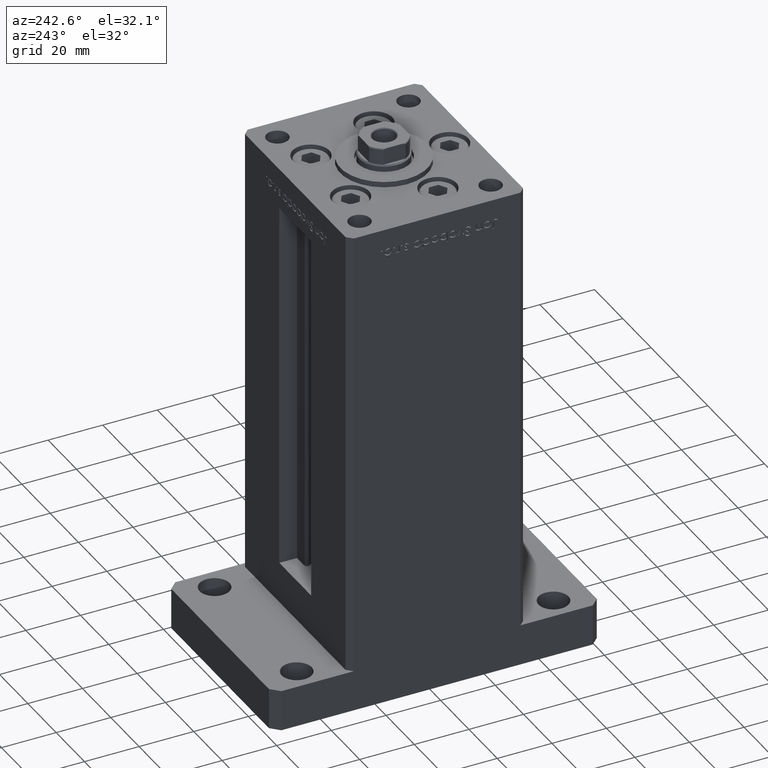
[diagram: clean part render]
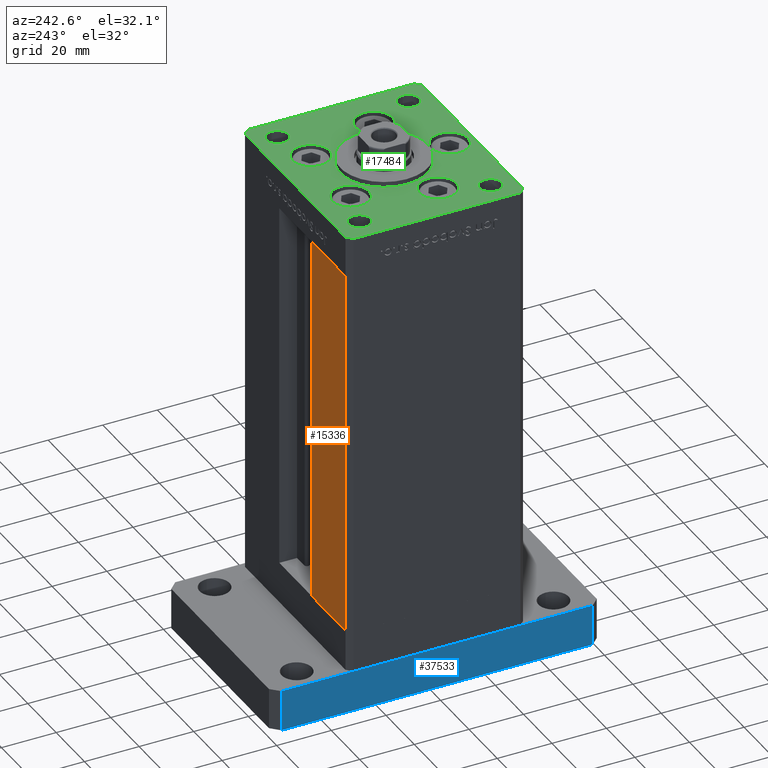
[diagram: same view with three faces highlighted in distinct colors, each labeled with its STEP entity id]
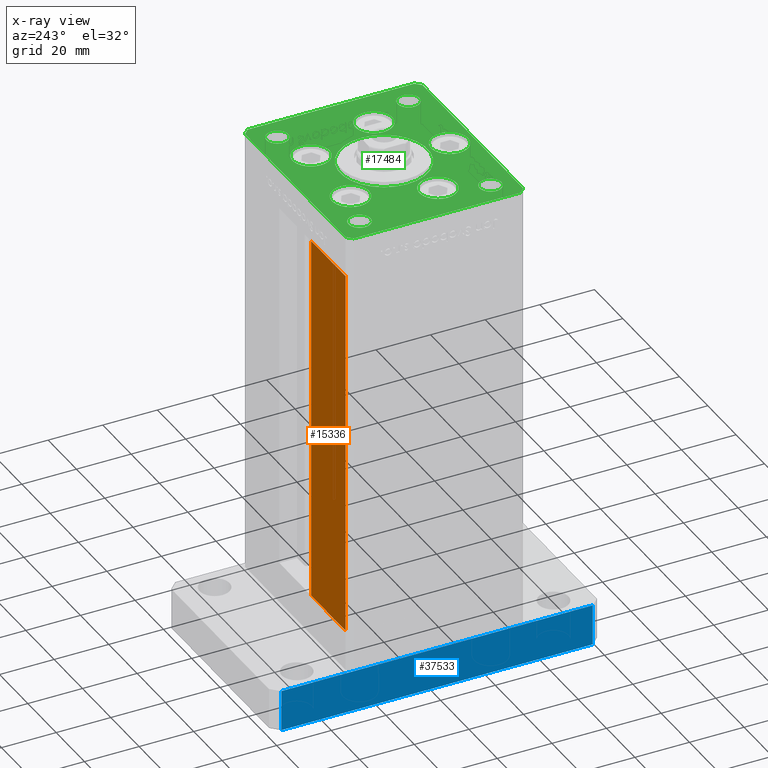
[diagram: x-ray of the same camera — body ghosted, the three highlighted faces saturated]
A machine part, auxiliary view with three faces highlighted in distinct colors.
The next image is the same camera in x-ray (body ghosted, the three faces saturated) — at least one of them is partly hidden behind the body in this view.
Their STEP definitions:

[orange] entity #15336 — the highlighted planar face has unit normal (0, -1, 0).
#1339 = VERTEX_POINT ( 'NONE', #50384 ) ;
#2008 = LINE ( 'NONE', #51422, #10471 ) ;
#3023 = EDGE_LOOP ( 'NONE', ( #21332, #34468, #3472, #3161 ) ) ;
#3161 = ORIENTED_EDGE ( 'NONE', *, *, #12443, .F. ) ;
#3472 = ORIENTED_EDGE ( 'NONE', *, *, #41448, .T. ) ;
#9154 = VECTOR ( 'NONE', #34036, 1000.000000000000000 ) ;
#10471 = VECTOR ( 'NONE', #39759, 1000.000000000000000 ) ;
#12287 = VERTEX_POINT ( 'NONE', #39274 ) ;
#12443 = EDGE_CURVE ( 'NONE', #27470, #33014, #2008, .T. ) ;
#15336 = ADVANCED_FACE ( 'NONE', ( #30939 ), #23301, .F. ) ;
#21332 = ORIENTED_EDGE ( 'NONE', *, *, #50135, .T. ) ;
#23165 = CARTESIAN_POINT ( 'NONE',  ( -11.25000000000000178, 32.49999999999999289, 0.000000000000000000 ) ) ;
#23301 = PLANE ( 'NONE',  #24415 ) ;
#24415 = AXIS2_PLACEMENT_3D ( 'NONE', #52358, #26851, #39098 ) ;
#25604 = CARTESIAN_POINT ( 'NONE',  ( -11.25000000000000178, 32.49999999999999289, 136.0000000000000000 ) ) ;
#26851 = DIRECTION ( 'NONE',  ( 0.000000000000000000, -1.000000000000000000, 0.000000000000000000 ) ) ;
#27470 = VERTEX_POINT ( 'NONE', #41956 ) ;
#28240 = CARTESIAN_POINT ( 'NONE',  ( -35.50000000000000000, 32.49999999999999289, 0.000000000000000000 ) ) ;
#30939 = FACE_OUTER_BOUND ( 'NONE', #3023, .T. ) ;
#33014 = VERTEX_POINT ( 'NONE', #28240 ) ;
#33531 = LINE ( 'NONE', #42236, #47785 ) ;
#33756 = LINE ( 'NONE', #25604, #9154 ) ;
#34036 = DIRECTION ( 'NONE',  ( 1.000000000000000000, 0.000000000000000000, 0.000000000000000000 ) ) ;
#34468 = ORIENTED_EDGE ( 'NONE', *, *, #35773, .F. ) ;
#35773 = EDGE_CURVE ( 'NONE', #12287, #1339, #33531, .T. ) ;
#39098 = DIRECTION ( 'NONE',  ( 0.000000000000000000, -0.000000000000000000, -1.000000000000000000 ) ) ;
#39274 = CARTESIAN_POINT ( 'NONE',  ( -11.25000000000000178, 32.49999999999999289, 0.000000000000000000 ) ) ;
#39751 = DIRECTION ( 'NONE',  ( -1.000000000000000000, 0.000000000000000000, 0.000000000000000000 ) ) ;
#39759 = DIRECTION ( 'NONE',  ( -0.000000000000000000, -0.000000000000000000, -1.000000000000000000 ) ) ;
#41448 = EDGE_CURVE ( 'NONE', #12287, #33014, #48138, .T. ) ;
#41956 = CARTESIAN_POINT ( 'NONE',  ( -35.50000000000000000, 32.49999999999999289, 136.0000000000000000 ) ) ;
#42236 = CARTESIAN_POINT ( 'NONE',  ( -11.25000000000000178, 32.49999999999999289, 0.000000000000000000 ) ) ;
#46281 = VECTOR ( 'NONE', #39751, 1000.000000000000000 ) ;
#47785 = VECTOR ( 'NONE', #50068, 1000.000000000000000 ) ;
#48138 = LINE ( 'NONE', #23165, #46281 ) ;
#50068 = DIRECTION ( 'NONE',  ( -0.000000000000000000, -0.000000000000000000, 1.000000000000000000 ) ) ;
#50135 = EDGE_CURVE ( 'NONE', #27470, #1339, #33756, .T. ) ;
#50384 = CARTESIAN_POINT ( 'NONE',  ( -11.25000000000000178, 32.49999999999999289, 136.0000000000000000 ) ) ;
#51422 = CARTESIAN_POINT ( 'NONE',  ( -35.50000000000000000, 32.49999999999999289, 136.0000000000000000 ) ) ;
#52358 = CARTESIAN_POINT ( 'NONE',  ( -11.25000000000000178, 32.49999999999999289, 136.0000000000000000 ) ) ;

[blue] entity #37533 — the highlighted planar face has unit normal (1, -0, 0).
#2161 = LINE ( 'NONE', #13847, #25506 ) ;
#2397 = CARTESIAN_POINT ( 'NONE',  ( -37.49999999999999289, -57.00000000000002132, 15.00000000000000000 ) ) ;
#3364 = DIRECTION ( 'NONE',  ( 7.304098846218132695E-16, 1.000000000000000000, 0.000000000000000000 ) ) ;
#5126 = CARTESIAN_POINT ( 'NONE',  ( -37.49999999999990763, 57.00000000000000711, 15.00000000000000000 ) ) ;
#7164 = CARTESIAN_POINT ( 'NONE',  ( -37.49999999999990763, 57.00000000000000711, 15.00000000000000000 ) ) ;
#12035 = DIRECTION ( 'NONE',  ( -7.304098846218132695E-16, -1.000000000000000000, 0.000000000000000000 ) ) ;
#12796 = ORIENTED_EDGE ( 'NONE', *, *, #20062, .T. ) ;
#13132 = VECTOR ( 'NONE', #50747, 1000.000000000000000 ) ;
#13847 = CARTESIAN_POINT ( 'NONE',  ( -37.49999999999990763, 57.00000000000000711, 0.000000000000000000 ) ) ;
#15029 = EDGE_CURVE ( 'NONE', #48775, #47309, #17903, .T. ) ;
#16918 = CARTESIAN_POINT ( 'NONE',  ( -37.49999999999990763, 57.00000000000000711, 15.00000000000000000 ) ) ;
#17903 = LINE ( 'NONE', #2397, #13132 ) ;
#20062 = EDGE_CURVE ( 'NONE', #27847, #30831, #32957, .T. ) ;
#20787 = ORIENTED_EDGE ( 'NONE', *, *, #42048, .F. ) ;
#21016 = CARTESIAN_POINT ( 'NONE',  ( -37.49999999999990763, 57.00000000000000711, 15.00000000000000000 ) ) ;
#22756 = AXIS2_PLACEMENT_3D ( 'NONE', #21016, #49506, #3364 ) ;
#25506 = VECTOR ( 'NONE', #51030, 1000.000000000000000 ) ;
#25870 = DIRECTION ( 'NONE',  ( -0.000000000000000000, -0.000000000000000000, -1.000000000000000000 ) ) ;
#27847 = VERTEX_POINT ( 'NONE', #5126 ) ;
#28787 = ORIENTED_EDGE ( 'NONE', *, *, #42643, .T. ) ;
#28906 = EDGE_LOOP ( 'NONE', ( #28787, #37389, #20787, #12796 ) ) ;
#30831 = VERTEX_POINT ( 'NONE', #45983 ) ;
#32957 = LINE ( 'NONE', #16918, #53258 ) ;
#37389 = ORIENTED_EDGE ( 'NONE', *, *, #15029, .F. ) ;
#37533 = ADVANCED_FACE ( 'NONE', ( #50781 ), #37597, .F. ) ;
#37597 = PLANE ( 'NONE',  #22756 ) ;
#40221 = VECTOR ( 'NONE', #12035, 1000.000000000000000 ) ;
#42048 = EDGE_CURVE ( 'NONE', #27847, #48775, #53566, .T. ) ;
#42643 = EDGE_CURVE ( 'NONE', #30831, #47309, #2161, .T. ) ;
#45983 = CARTESIAN_POINT ( 'NONE',  ( -37.49999999999990763, 57.00000000000000711, 0.000000000000000000 ) ) ;
#47147 = CARTESIAN_POINT ( 'NONE',  ( -37.49999999999999289, -57.00000000000002132, 15.00000000000000000 ) ) ;
#47309 = VERTEX_POINT ( 'NONE', #53523 ) ;
#48775 = VERTEX_POINT ( 'NONE', #47147 ) ;
#49506 = DIRECTION ( 'NONE',  ( 1.000000000000000000, -7.304098846218132695E-16, 0.000000000000000000 ) ) ;
#50747 = DIRECTION ( 'NONE',  ( -0.000000000000000000, -0.000000000000000000, -1.000000000000000000 ) ) ;
#50781 = FACE_OUTER_BOUND ( 'NONE', #28906, .T. ) ;
#51030 = DIRECTION ( 'NONE',  ( -7.304098846218132695E-16, -1.000000000000000000, 0.000000000000000000 ) ) ;
#53258 = VECTOR ( 'NONE', #25870, 1000.000000000000000 ) ;
#53523 = CARTESIAN_POINT ( 'NONE',  ( -37.49999999999999289, -57.00000000000002132, 0.000000000000000000 ) ) ;
#53566 = LINE ( 'NONE', #7164, #40221 ) ;

[green] entity #17484 — the highlighted planar face has unit normal (0, 0, 1).
#295 = ORIENTED_EDGE ( 'NONE', *, *, #32618, .T. ) ;
#374 = CIRCLE ( 'NONE', #14262, 16.00000000000000355 ) ;
#465 = ORIENTED_EDGE ( 'NONE', *, *, #22679, .T. ) ;
#651 = DIRECTION ( 'NONE',  ( -1.000000000000000000, -1.954618001100627573E-16, 0.000000000000000000 ) ) ;
#946 = FACE_BOUND ( 'NONE', #22179, .T. ) ;
#993 = CARTESIAN_POINT ( 'NONE',  ( -22.62741699796953299, -8.000000000000000000, 0.000000000000000000 ) ) ;
#1073 = AXIS2_PLACEMENT_3D ( 'NONE', #50082, #41714, #46567 ) ;
#1078 = CIRCLE ( 'NONE', #24501, 3.999999999999996447 ) ;
#1553 = CARTESIAN_POINT ( 'NONE',  ( 33.00000000000000000, 24.00000000000000355, 0.000000000000000000 ) ) ;
#1652 = CARTESIAN_POINT ( 'NONE',  ( -29.00000000000000000, 24.00000000000000711, 0.000000000000000000 ) ) ;
#2173 = ORIENTED_EDGE ( 'NONE', *, *, #36074, .T. ) ;
#2680 = ORIENTED_EDGE ( 'NONE', *, *, #21566, .F. ) ;
#2726 = ORIENTED_EDGE ( 'NONE', *, *, #30669, .T. ) ;
#2859 = CARTESIAN_POINT ( 'NONE',  ( 29.00000000000000355, -23.99999999999999645, 0.000000000000000000 ) ) ;
#3047 = AXIS2_PLACEMENT_3D ( 'NONE', #6230, #34778, #39916 ) ;
#3269 = VERTEX_POINT ( 'NONE', #3989 ) ;
#3448 = AXIS2_PLACEMENT_3D ( 'NONE', #28226, #52656, #15998 ) ;
#3607 = DIRECTION ( 'NONE',  ( -1.000000000000000000, 0.000000000000000000, 0.000000000000000000 ) ) ;
#3701 = CARTESIAN_POINT ( 'NONE',  ( -6.750000000001552536, -24.00000000000001066, 0.000000000000000000 ) ) ;
#3857 = CARTESIAN_POINT ( 'NONE',  ( 0.000000000000000000, -24.00000000000001066, 0.000000000000000000 ) ) ;
#3977 = EDGE_CURVE ( 'NONE', #5940, #23628, #31138, .T. ) ;
#3989 = CARTESIAN_POINT ( 'NONE',  ( 15.87741699796952410, -8.000000000000000000, 0.000000000000000000 ) ) ;
#4038 = EDGE_CURVE ( 'NONE', #10943, #51070, #9466, .T. ) ;
#4211 = EDGE_CURVE ( 'NONE', #21916, #23984, #10166, .T. ) ;
#4369 = VECTOR ( 'NONE', #9335, 1000.000000000000000 ) ;
#4488 = AXIS2_PLACEMENT_3D ( 'NONE', #52748, #15562, #3607 ) ;
#4526 = CIRCLE ( 'NONE', #14067, 6.749999999999997335 ) ;
#4577 = DIRECTION ( 'NONE',  ( 1.000000000000000000, 0.000000000000000000, 0.000000000000000000 ) ) ;
#4735 = CARTESIAN_POINT ( 'NONE',  ( 35.50000000000000000, 32.49999999999999289, 0.000000000000000000 ) ) ;
#5151 = VECTOR ( 'NONE', #10458, 1000.000000000000000 ) ;
#5483 = EDGE_CURVE ( 'NONE', #23303, #51928, #6003, .T. ) ;
#5548 = AXIS2_PLACEMENT_3D ( 'NONE', #3857, #48390, #44076 ) ;
#5940 = VERTEX_POINT ( 'NONE', #1553 ) ;
#6003 = CIRCLE ( 'NONE', #12942, 16.00000000000000355 ) ;
#6075 = CIRCLE ( 'NONE', #46816, 6.750000000000000000 ) ;
#6230 = CARTESIAN_POINT ( 'NONE',  ( 13.99106857963324124, 19.50000000000000000, 0.000000000000000000 ) ) ;
#6265 = DIRECTION ( 'NONE',  ( -0.000000000000000000, -0.000000000000000000, -1.000000000000000000 ) ) ;
#6925 = DIRECTION ( 'NONE',  ( -1.000000000000000000, 0.000000000000000000, 0.000000000000000000 ) ) ;
#7287 = CIRCLE ( 'NONE', #5548, 6.750000000001552536 ) ;
#7712 = AXIS2_PLACEMENT_3D ( 'NONE', #48471, #19985, #40632 ) ;
#7731 = EDGE_LOOP ( 'NONE', ( #25897, #44507 ) ) ;
#8165 = CIRCLE ( 'NONE', #53284, 6.750000000001552536 ) ;
#8559 = FACE_BOUND ( 'NONE', #30779, .T. ) ;
#8656 = CARTESIAN_POINT ( 'NONE',  ( 29.00000000000000000, 24.00000000000000355, 0.000000000000000000 ) ) ;
#9014 = DIRECTION ( 'NONE',  ( 1.000000000000000000, 0.000000000000000000, 0.000000000000000000 ) ) ;
#9157 = DIRECTION ( 'NONE',  ( 0.000000000000000000, 0.000000000000000000, 1.000000000000000000 ) ) ;
#9335 = DIRECTION ( 'NONE',  ( -0.7071067811865524577, 0.7071067811865426878, 0.000000000000000000 ) ) ;
#9348 = DIRECTION ( 'NONE',  ( 0.000000000000000000, 0.000000000000000000, 1.000000000000000000 ) ) ;
#9466 = CIRCLE ( 'NONE', #30270, 3.999999999999996447 ) ;
#9506 = CARTESIAN_POINT ( 'NONE',  ( 29.37741699796954364, -8.000000000000000000, 0.000000000000000000 ) ) ;
#9512 = EDGE_CURVE ( 'NONE', #51311, #33471, #41558, .T. ) ;
#9581 = EDGE_CURVE ( 'NONE', #29200, #3269, #43352, .T. ) ;
#9584 = EDGE_LOOP ( 'NONE', ( #2726, #33657, #39106, #43207, #295, #465, #40172, #52803 ) ) ;
#10101 = VERTEX_POINT ( 'NONE', #10969 ) ;
#10166 = LINE ( 'NONE', #42238, #18144 ) ;
#10406 = VERTEX_POINT ( 'NONE', #52451 ) ;
#10458 = DIRECTION ( 'NONE',  ( 0.7071067811865512365, -0.7071067811865439090, 0.000000000000000000 ) ) ;
#10462 = LINE ( 'NONE', #44398, #47172 ) ;
#10712 = EDGE_LOOP ( 'NONE', ( #46963, #23668 ) ) ;
#10782 = DIRECTION ( 'NONE',  ( 1.000000000000000000, 0.000000000000000000, 0.000000000000000000 ) ) ;
#10943 = VERTEX_POINT ( 'NONE', #40336 ) ;
#10969 = CARTESIAN_POINT ( 'NONE',  ( 35.50000000000000000, 32.49999999999999289, 0.000000000000000000 ) ) ;
#11045 = CARTESIAN_POINT ( 'NONE',  ( -7.241068579633241242, 19.50000000000000000, 0.000000000000000000 ) ) ;
#11314 = VECTOR ( 'NONE', #51478, 1000.000000000000000 ) ;
#11338 = ORIENTED_EDGE ( 'NONE', *, *, #18469, .F. ) ;
#11398 = CARTESIAN_POINT ( 'NONE',  ( -37.50000000000000000, -30.50000000000004263, 0.000000000000000000 ) ) ;
#11675 = CARTESIAN_POINT ( 'NONE',  ( 33.00000000000000000, -23.99999999999999645, 0.000000000000000000 ) ) ;
#11962 = EDGE_CURVE ( 'NONE', #37146, #27698, #6075, .T. ) ;
#11979 = CARTESIAN_POINT ( 'NONE',  ( -37.50000000000001421, 30.50000000000000000, 0.000000000000000000 ) ) ;
#12060 = CARTESIAN_POINT ( 'NONE',  ( -35.50000000000001421, -32.50000000000000711, 0.000000000000000000 ) ) ;
#12122 = DIRECTION ( 'NONE',  ( 1.000000000000000000, 0.000000000000000000, 0.000000000000000000 ) ) ;
#12731 = EDGE_LOOP ( 'NONE', ( #36112, #2680 ) ) ;
#12764 = CARTESIAN_POINT ( 'NONE',  ( 0.000000000000000000, -6.938893903907228378E-15, 0.000000000000000000 ) ) ;
#12800 = DIRECTION ( 'NONE',  ( 0.000000000000000000, 0.000000000000000000, 1.000000000000000000 ) ) ;
#12942 = AXIS2_PLACEMENT_3D ( 'NONE', #12764, #45101, #29330 ) ;
#13049 = CARTESIAN_POINT ( 'NONE',  ( 35.50000000000001421, -32.49999999999992184, 0.000000000000000000 ) ) ;
#13446 = FACE_OUTER_BOUND ( 'NONE', #9584, .T. ) ;
#13487 = DIRECTION ( 'NONE',  ( 1.000000000000000000, 0.000000000000000000, 0.000000000000000000 ) ) ;
#13720 = CARTESIAN_POINT ( 'NONE',  ( 16.00000000000000355, -4.979459025271462852E-15, 0.000000000000000000 ) ) ;
#13844 = DIRECTION ( 'NONE',  ( 1.000000000000000000, 0.000000000000000000, 0.000000000000000000 ) ) ;
#14067 = AXIS2_PLACEMENT_3D ( 'NONE', #32547, #16505, #40711 ) ;
#14262 = AXIS2_PLACEMENT_3D ( 'NONE', #51578, #30691, #13844 ) ;
#14649 = CARTESIAN_POINT ( 'NONE',  ( -15.87741699796953476, -8.000000000000000000, 0.000000000000000000 ) ) ;
#15562 = DIRECTION ( 'NONE',  ( -0.000000000000000000, -0.000000000000000000, -1.000000000000000000 ) ) ;
#15672 = DIRECTION ( 'NONE',  ( 0.000000000000000000, 0.000000000000000000, 1.000000000000000000 ) ) ;
#15681 = VERTEX_POINT ( 'NONE', #19443 ) ;
#15968 = VERTEX_POINT ( 'NONE', #32408 ) ;
#15981 = VERTEX_POINT ( 'NONE', #44372 ) ;
#15998 = DIRECTION ( 'NONE',  ( -1.000000000000000000, 0.000000000000000000, 0.000000000000000000 ) ) ;
#16105 = VERTEX_POINT ( 'NONE', #50211 ) ;
#16505 = DIRECTION ( 'NONE',  ( 0.000000000000000000, 0.000000000000000000, 1.000000000000000000 ) ) ;
#16706 = FACE_BOUND ( 'NONE', #7731, .T. ) ;
#17122 = LINE ( 'NONE', #13049, #47230 ) ;
#17484 = ADVANCED_FACE ( 'NONE', ( #42789, #946, #17521, #45754, #34098, #20788, #50630, #33547, #16706, #13446, #8559 ), #25119, .T. ) ;
#17521 = FACE_BOUND ( 'NONE', #24169, .T. ) ;
#18119 = ORIENTED_EDGE ( 'NONE', *, *, #46284, .F. ) ;
#18127 = VERTEX_POINT ( 'NONE', #31871 ) ;
#18139 = AXIS2_PLACEMENT_3D ( 'NONE', #27938, #19527, #52634 ) ;
#18144 = VECTOR ( 'NONE', #30259, 1000.000000000000000 ) ;
#18305 = DIRECTION ( 'NONE',  ( 1.000000000000000000, 0.000000000000000000, 0.000000000000000000 ) ) ;
#18469 = EDGE_CURVE ( 'NONE', #15981, #15968, #4526, .T. ) ;
#18966 = ORIENTED_EDGE ( 'NONE', *, *, #33523, .F. ) ;
#19076 = CIRCLE ( 'NONE', #30382, 6.750000000000009770 ) ;
#19283 = DIRECTION ( 'NONE',  ( 1.000000000000000000, 0.000000000000000000, 0.000000000000000000 ) ) ;
#19443 = CARTESIAN_POINT ( 'NONE',  ( -33.00000000000000000, 24.00000000000000711, 0.000000000000000000 ) ) ;
#19527 = DIRECTION ( 'NONE',  ( 0.000000000000000000, 0.000000000000000000, 1.000000000000000000 ) ) ;
#19985 = DIRECTION ( 'NONE',  ( 0.000000000000000000, 0.000000000000000000, 1.000000000000000000 ) ) ;
#20421 = EDGE_CURVE ( 'NONE', #29543, #10406, #17122, .T. ) ;
#20744 = CARTESIAN_POINT ( 'NONE',  ( 6.750000000001552536, -24.00000000000001066, 0.000000000000000000 ) ) ;
#20788 = FACE_BOUND ( 'NONE', #36159, .T. ) ;
#21177 = VERTEX_POINT ( 'NONE', #11675 ) ;
#21566 = EDGE_CURVE ( 'NONE', #31276, #24437, #7287, .T. ) ;
#21850 = EDGE_CURVE ( 'NONE', #10406, #16105, #45870, .T. ) ;
#21916 = VERTEX_POINT ( 'NONE', #25239 ) ;
#21992 = CARTESIAN_POINT ( 'NONE',  ( 25.00000000000000355, -23.99999999999999645, 0.000000000000000000 ) ) ;
#22179 = EDGE_LOOP ( 'NONE', ( #38048, #18119 ) ) ;
#22679 = EDGE_CURVE ( 'NONE', #10101, #21916, #29724, .T. ) ;
#23303 = VERTEX_POINT ( 'NONE', #49630 ) ;
#23529 = CARTESIAN_POINT ( 'NONE',  ( 35.50000000000001421, -32.49999999999992184, 0.000000000000000000 ) ) ;
#23628 = VERTEX_POINT ( 'NONE', #30830 ) ;
#23668 = ORIENTED_EDGE ( 'NONE', *, *, #44644, .F. ) ;
#23984 = VERTEX_POINT ( 'NONE', #11979 ) ;
#24169 = EDGE_LOOP ( 'NONE', ( #49659, #11338 ) ) ;
#24437 = VERTEX_POINT ( 'NONE', #20744 ) ;
#24501 = AXIS2_PLACEMENT_3D ( 'NONE', #47082, #9348, #18305 ) ;
#24692 = DIRECTION ( 'NONE',  ( 0.000000000000000000, 1.000000000000000000, 0.000000000000000000 ) ) ;
#25119 = PLANE ( 'NONE',  #1073 ) ;
#25239 = CARTESIAN_POINT ( 'NONE',  ( -35.50000000000000711, 32.49999999999997868, 0.000000000000000000 ) ) ;
#25503 = CIRCLE ( 'NONE', #44582, 6.750000000000000000 ) ;
#25629 = LINE ( 'NONE', #28896, #4369 ) ;
#25833 = EDGE_CURVE ( 'NONE', #15681, #18127, #38135, .T. ) ;
#25864 = VERTEX_POINT ( 'NONE', #11398 ) ;
#25897 = ORIENTED_EDGE ( 'NONE', *, *, #4038, .F. ) ;
#25943 = EDGE_CURVE ( 'NONE', #23628, #5940, #39028, .T. ) ;
#25975 = ORIENTED_EDGE ( 'NONE', *, *, #3977, .F. ) ;
#26396 = CIRCLE ( 'NONE', #36838, 4.000000000000000000 ) ;
#26511 = LINE ( 'NONE', #43096, #11314 ) ;
#26640 = DIRECTION ( 'NONE',  ( -1.000000000000000000, 0.000000000000000000, 0.000000000000000000 ) ) ;
#27015 = LINE ( 'NONE', #40333, #5151 ) ;
#27057 = DIRECTION ( 'NONE',  ( 1.000000000000000000, 0.000000000000000000, 0.000000000000000000 ) ) ;
#27698 = VERTEX_POINT ( 'NONE', #35957 ) ;
#27938 = CARTESIAN_POINT ( 'NONE',  ( -22.62741699796953299, -8.000000000000000000, 0.000000000000000000 ) ) ;
#27962 = DIRECTION ( 'NONE',  ( 0.000000000000000000, 0.000000000000000000, 1.000000000000000000 ) ) ;
#28226 = CARTESIAN_POINT ( 'NONE',  ( -29.00000000000000000, 24.00000000000000711, 0.000000000000000000 ) ) ;
#28400 = EDGE_CURVE ( 'NONE', #23984, #25864, #26511, .T. ) ;
#28522 = ORIENTED_EDGE ( 'NONE', *, *, #25943, .F. ) ;
#28896 = CARTESIAN_POINT ( 'NONE',  ( 37.50000000000000711, 30.50000000000001421, 0.000000000000000000 ) ) ;
#29028 = ORIENTED_EDGE ( 'NONE', *, *, #34855, .T. ) ;
#29200 = VERTEX_POINT ( 'NONE', #9506 ) ;
#29330 = DIRECTION ( 'NONE',  ( 1.000000000000000000, 0.000000000000000000, 0.000000000000000000 ) ) ;
#29543 = VERTEX_POINT ( 'NONE', #23529 ) ;
#29584 = CIRCLE ( 'NONE', #47753, 6.749999999999999112 ) ;
#29724 = LINE ( 'NONE', #4735, #41493 ) ;
#30081 = CARTESIAN_POINT ( 'NONE',  ( 22.62741699796953299, -8.000000000000000000, 0.000000000000000000 ) ) ;
#30122 = ORIENTED_EDGE ( 'NONE', *, *, #31403, .F. ) ;
#30259 = DIRECTION ( 'NONE',  ( -0.7071067811865524577, -0.7071067811865426878, 0.000000000000000000 ) ) ;
#30270 = AXIS2_PLACEMENT_3D ( 'NONE', #52021, #36033, #27057 ) ;
#30382 = AXIS2_PLACEMENT_3D ( 'NONE', #39586, #42868, #10782 ) ;
#30669 = EDGE_CURVE ( 'NONE', #25864, #32465, #27015, .T. ) ;
#30691 = DIRECTION ( 'NONE',  ( 0.000000000000000000, 0.000000000000000000, 1.000000000000000000 ) ) ;
#30779 = EDGE_LOOP ( 'NONE', ( #2173, #29028 ) ) ;
#30830 = CARTESIAN_POINT ( 'NONE',  ( 24.99999999999999645, 24.00000000000000355, 0.000000000000000000 ) ) ;
#31138 = CIRCLE ( 'NONE', #7712, 4.000000000000000000 ) ;
#31276 = VERTEX_POINT ( 'NONE', #3701 ) ;
#31403 = EDGE_CURVE ( 'NONE', #3269, #29200, #19076, .T. ) ;
#31871 = CARTESIAN_POINT ( 'NONE',  ( -25.00000000000000000, 24.00000000000000711, 0.000000000000000000 ) ) ;
#32194 = DIRECTION ( 'NONE',  ( -0.000000000000000000, -0.000000000000000000, -1.000000000000000000 ) ) ;
#32408 = CARTESIAN_POINT ( 'NONE',  ( 20.74106857963323947, 19.50000000000000000, 0.000000000000000000 ) ) ;
#32465 = VERTEX_POINT ( 'NONE', #12060 ) ;
#32547 = CARTESIAN_POINT ( 'NONE',  ( 13.99106857963324124, 19.50000000000000000, 0.000000000000000000 ) ) ;
#32618 = EDGE_CURVE ( 'NONE', #16105, #10101, #25629, .T. ) ;
#32847 = CARTESIAN_POINT ( 'NONE',  ( 37.50000000000000711, -30.49999999999992895, 0.000000000000000000 ) ) ;
#33432 = CARTESIAN_POINT ( 'NONE',  ( -32.99999999999999289, -23.99999999999999645, 0.000000000000000000 ) ) ;
#33471 = VERTEX_POINT ( 'NONE', #50407 ) ;
#33523 = EDGE_CURVE ( 'NONE', #33471, #51311, #29584, .T. ) ;
#33547 = FACE_BOUND ( 'NONE', #45706, .T. ) ;
#33657 = ORIENTED_EDGE ( 'NONE', *, *, #43188, .T. ) ;
#33807 = AXIS2_PLACEMENT_3D ( 'NONE', #30081, #50155, #49891 ) ;
#34098 = FACE_BOUND ( 'NONE', #12731, .T. ) ;
#34464 = ORIENTED_EDGE ( 'NONE', *, *, #9512, .F. ) ;
#34741 = ORIENTED_EDGE ( 'NONE', *, *, #25833, .T. ) ;
#34778 = DIRECTION ( 'NONE',  ( 0.000000000000000000, 0.000000000000000000, 1.000000000000000000 ) ) ;
#34855 = EDGE_CURVE ( 'NONE', #50471, #21177, #35696, .T. ) ;
#35351 = EDGE_LOOP ( 'NONE', ( #41540, #34741 ) ) ;
#35696 = CIRCLE ( 'NONE', #50376, 4.000000000000000000 ) ;
#35957 = CARTESIAN_POINT ( 'NONE',  ( -20.74106857963324302, 19.50000000000000000, 0.000000000000000000 ) ) ;
#36033 = DIRECTION ( 'NONE',  ( 0.000000000000000000, 0.000000000000000000, 1.000000000000000000 ) ) ;
#36074 = EDGE_CURVE ( 'NONE', #21177, #50471, #53058, .T. ) ;
#36112 = ORIENTED_EDGE ( 'NONE', *, *, #48121, .F. ) ;
#36159 = EDGE_LOOP ( 'NONE', ( #34464, #18966 ) ) ;
#36838 = AXIS2_PLACEMENT_3D ( 'NONE', #1652, #6265, #26640 ) ;
#37146 = VERTEX_POINT ( 'NONE', #11045 ) ;
#38048 = ORIENTED_EDGE ( 'NONE', *, *, #11962, .F. ) ;
#38135 = CIRCLE ( 'NONE', #3448, 4.000000000000000000 ) ;
#38233 = ORIENTED_EDGE ( 'NONE', *, *, #9581, .F. ) ;
#39028 = CIRCLE ( 'NONE', #51970, 4.000000000000000000 ) ;
#39106 = ORIENTED_EDGE ( 'NONE', *, *, #20421, .T. ) ;
#39151 = EDGE_CURVE ( 'NONE', #51070, #10943, #1078, .T. ) ;
#39586 = CARTESIAN_POINT ( 'NONE',  ( 22.62741699796953299, -8.000000000000000000, 0.000000000000000000 ) ) ;
#39916 = DIRECTION ( 'NONE',  ( 1.000000000000000000, 0.000000000000000000, 0.000000000000000000 ) ) ;
#39934 = CARTESIAN_POINT ( 'NONE',  ( -13.99106857963324124, 19.50000000000000000, 0.000000000000000000 ) ) ;
#40172 = ORIENTED_EDGE ( 'NONE', *, *, #4211, .T. ) ;
#40333 = CARTESIAN_POINT ( 'NONE',  ( -37.50000000000000000, -30.50000000000004263, 0.000000000000000000 ) ) ;
#40336 = CARTESIAN_POINT ( 'NONE',  ( -25.00000000000000355, -23.99999999999999645, 0.000000000000000000 ) ) ;
#40632 = DIRECTION ( 'NONE',  ( 1.000000000000000000, 0.000000000000000000, 0.000000000000000000 ) ) ;
#40711 = DIRECTION ( 'NONE',  ( 1.000000000000000000, 0.000000000000000000, 0.000000000000000000 ) ) ;
#41211 = CIRCLE ( 'NONE', #3047, 6.749999999999997335 ) ;
#41493 = VECTOR ( 'NONE', #651, 1000.000000000000000 ) ;
#41540 = ORIENTED_EDGE ( 'NONE', *, *, #48178, .T. ) ;
#41558 = CIRCLE ( 'NONE', #18139, 6.749999999999999112 ) ;
#41714 = DIRECTION ( 'NONE',  ( -0.000000000000000000, 0.000000000000000000, 1.000000000000000000 ) ) ;
#42238 = CARTESIAN_POINT ( 'NONE',  ( -35.50000000000000711, 32.49999999999997868, 0.000000000000000000 ) ) ;
#42789 = FACE_BOUND ( 'NONE', #10712, .T. ) ;
#42868 = DIRECTION ( 'NONE',  ( 0.000000000000000000, 0.000000000000000000, 1.000000000000000000 ) ) ;
#43096 = CARTESIAN_POINT ( 'NONE',  ( -37.50000000000001421, 30.50000000000000000, 0.000000000000000000 ) ) ;
#43188 = EDGE_CURVE ( 'NONE', #32465, #29543, #10462, .T. ) ;
#43207 = ORIENTED_EDGE ( 'NONE', *, *, #21850, .T. ) ;
#43352 = CIRCLE ( 'NONE', #33807, 6.750000000000009770 ) ;
#44076 = DIRECTION ( 'NONE',  ( 1.000000000000000000, 0.000000000000000000, 0.000000000000000000 ) ) ;
#44091 = VECTOR ( 'NONE', #24692, 1000.000000000000000 ) ;
#44372 = CARTESIAN_POINT ( 'NONE',  ( 7.241068579633242130, 19.50000000000000000, 0.000000000000000000 ) ) ;
#44398 = CARTESIAN_POINT ( 'NONE',  ( -35.50000000000001421, -32.50000000000000711, 0.000000000000000000 ) ) ;
#44507 = ORIENTED_EDGE ( 'NONE', *, *, #39151, .F. ) ;
#44582 = AXIS2_PLACEMENT_3D ( 'NONE', #39934, #27962, #19283 ) ;
#44644 = EDGE_CURVE ( 'NONE', #51928, #23303, #374, .T. ) ;
#45101 = DIRECTION ( 'NONE',  ( 0.000000000000000000, 0.000000000000000000, 1.000000000000000000 ) ) ;
#45706 = EDGE_LOOP ( 'NONE', ( #25975, #28522 ) ) ;
#45754 = FACE_BOUND ( 'NONE', #48912, .T. ) ;
#45870 = LINE ( 'NONE', #32847, #44091 ) ;
#46284 = EDGE_CURVE ( 'NONE', #27698, #37146, #25503, .T. ) ;
#46567 = DIRECTION ( 'NONE',  ( 1.000000000000000000, 0.000000000000000000, 0.000000000000000000 ) ) ;
#46816 = AXIS2_PLACEMENT_3D ( 'NONE', #49304, #15672, #12122 ) ;
#46963 = ORIENTED_EDGE ( 'NONE', *, *, #5483, .F. ) ;
#47082 = CARTESIAN_POINT ( 'NONE',  ( -29.00000000000000000, -23.99999999999999645, 0.000000000000000000 ) ) ;
#47172 = VECTOR ( 'NONE', #47911, 1000.000000000000000 ) ;
#47230 = VECTOR ( 'NONE', #53508, 1000.000000000000000 ) ;
#47753 = AXIS2_PLACEMENT_3D ( 'NONE', #993, #9157, #13487 ) ;
#47911 = DIRECTION ( 'NONE',  ( 1.000000000000000000, 1.172770800660376149E-15, 0.000000000000000000 ) ) ;
#48121 = EDGE_CURVE ( 'NONE', #24437, #31276, #8165, .T. ) ;
#48178 = EDGE_CURVE ( 'NONE', #18127, #15681, #26396, .T. ) ;
#48390 = DIRECTION ( 'NONE',  ( 0.000000000000000000, 0.000000000000000000, 1.000000000000000000 ) ) ;
#48471 = CARTESIAN_POINT ( 'NONE',  ( 29.00000000000000000, 24.00000000000000355, 0.000000000000000000 ) ) ;
#48912 = EDGE_LOOP ( 'NONE', ( #38233, #30122 ) ) ;
#49304 = CARTESIAN_POINT ( 'NONE',  ( -13.99106857963324124, 19.50000000000000000, 0.000000000000000000 ) ) ;
#49630 = CARTESIAN_POINT ( 'NONE',  ( -16.00000000000000355, -6.938893903907228378E-15, 0.000000000000000000 ) ) ;
#49659 = ORIENTED_EDGE ( 'NONE', *, *, #50513, .F. ) ;
#49891 = DIRECTION ( 'NONE',  ( 1.000000000000000000, 0.000000000000000000, 0.000000000000000000 ) ) ;
#49913 = DIRECTION ( 'NONE',  ( 0.000000000000000000, 0.000000000000000000, 1.000000000000000000 ) ) ;
#50082 = CARTESIAN_POINT ( 'NONE',  ( 0.000000000000000000, 0.000000000000000000, 0.000000000000000000 ) ) ;
#50155 = DIRECTION ( 'NONE',  ( 0.000000000000000000, 0.000000000000000000, 1.000000000000000000 ) ) ;
#50211 = CARTESIAN_POINT ( 'NONE',  ( 37.50000000000000711, 30.50000000000001421, 0.000000000000000000 ) ) ;
#50264 = CARTESIAN_POINT ( 'NONE',  ( 0.000000000000000000, -24.00000000000001066, 0.000000000000000000 ) ) ;
#50376 = AXIS2_PLACEMENT_3D ( 'NONE', #2859, #32194, #6925 ) ;
#50407 = CARTESIAN_POINT ( 'NONE',  ( -29.37741699796953654, -8.000000000000000000, 0.000000000000000000 ) ) ;
#50471 = VERTEX_POINT ( 'NONE', #21992 ) ;
#50513 = EDGE_CURVE ( 'NONE', #15968, #15981, #41211, .T. ) ;
#50630 = FACE_BOUND ( 'NONE', #35351, .T. ) ;
#51070 = VERTEX_POINT ( 'NONE', #33432 ) ;
#51311 = VERTEX_POINT ( 'NONE', #14649 ) ;
#51478 = DIRECTION ( 'NONE',  ( 2.275047181608926165E-16, -1.000000000000000000, 0.000000000000000000 ) ) ;
#51578 = CARTESIAN_POINT ( 'NONE',  ( 0.000000000000000000, -6.938893903907228378E-15, 0.000000000000000000 ) ) ;
#51928 = VERTEX_POINT ( 'NONE', #13720 ) ;
#51970 = AXIS2_PLACEMENT_3D ( 'NONE', #8656, #49913, #4577 ) ;
#52021 = CARTESIAN_POINT ( 'NONE',  ( -29.00000000000000000, -23.99999999999999645, 0.000000000000000000 ) ) ;
#52451 = CARTESIAN_POINT ( 'NONE',  ( 37.50000000000000711, -30.49999999999992895, 0.000000000000000000 ) ) ;
#52634 = DIRECTION ( 'NONE',  ( 1.000000000000000000, 0.000000000000000000, 0.000000000000000000 ) ) ;
#52656 = DIRECTION ( 'NONE',  ( -0.000000000000000000, -0.000000000000000000, -1.000000000000000000 ) ) ;
#52748 = CARTESIAN_POINT ( 'NONE',  ( 29.00000000000000355, -23.99999999999999645, 0.000000000000000000 ) ) ;
#52803 = ORIENTED_EDGE ( 'NONE', *, *, #28400, .T. ) ;
#53058 = CIRCLE ( 'NONE', #4488, 4.000000000000000000 ) ;
#53284 = AXIS2_PLACEMENT_3D ( 'NONE', #50264, #12800, #9014 ) ;
#53508 = DIRECTION ( 'NONE',  ( 0.7071067811865463515, 0.7071067811865487940, 0.000000000000000000 ) ) ;